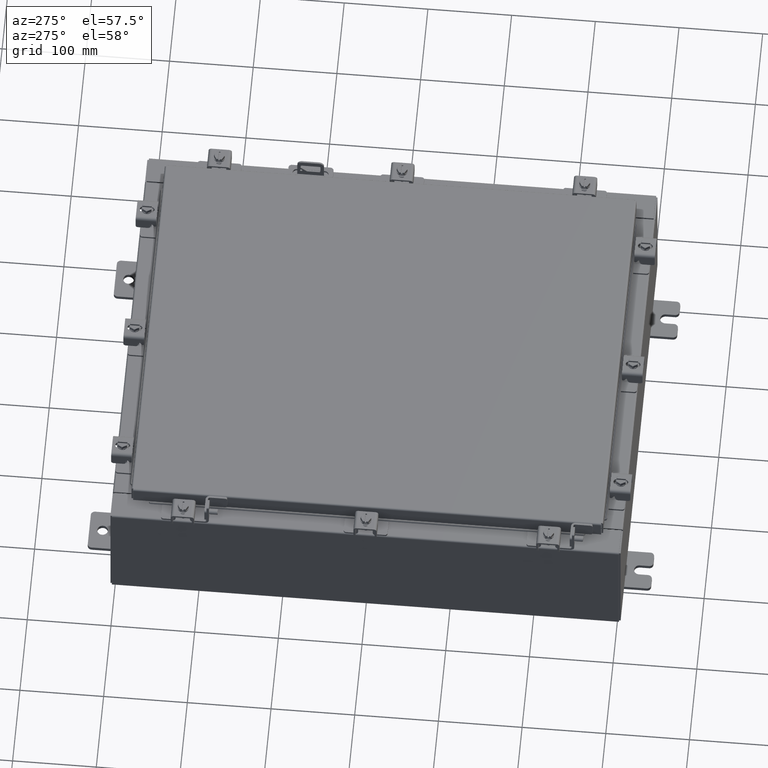
[diagram: clean part render]
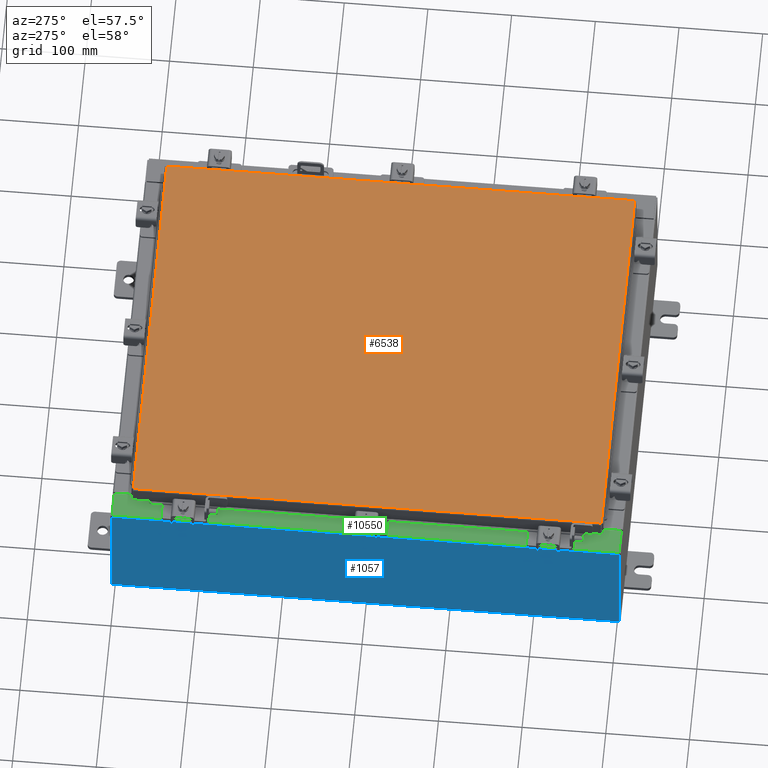
[diagram: same view with three faces highlighted in distinct colors, each labeled with its STEP entity id]
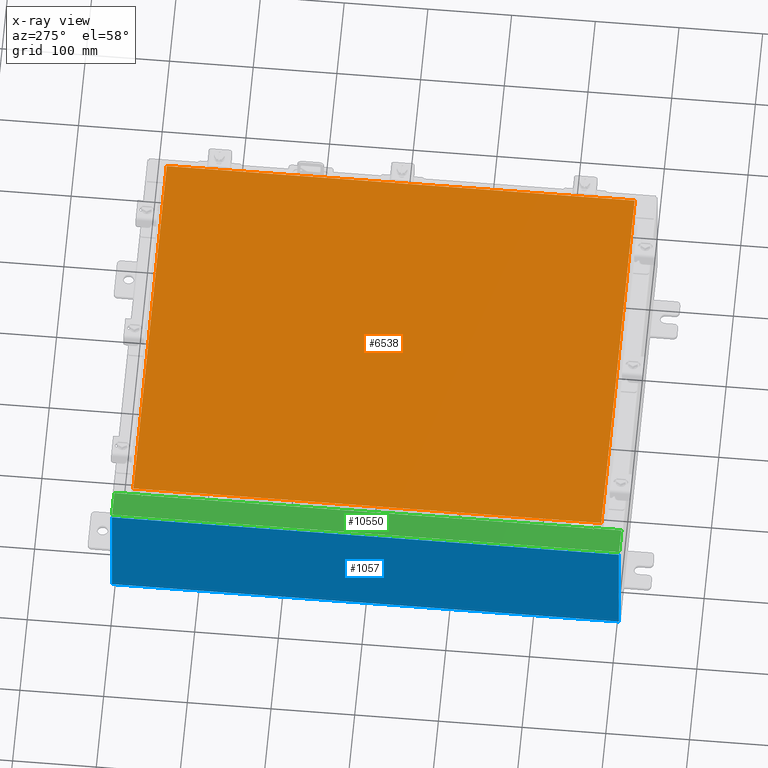
[diagram: x-ray of the same camera — body ghosted, the three highlighted faces saturated]
A machine part, auxiliary view with three faces highlighted in distinct colors.
The next image is the same camera in x-ray (body ghosted, the three faces saturated) — at least one of them is partly hidden behind the body in this view.
Their STEP definitions:

[orange] entity #6538 — the highlighted planar face has unit normal (0, 0, -1).
#2080 = LINE ( 'NONE', #19441, #20140 ) ;
#2302 = PLANE ( 'NONE',  #6782 ) ;
#3146 = CARTESIAN_POINT ( 'NONE',  ( -8.990299999999999500, -11.00630000000000100, -2.048885995248197400E-016 ) ) ;
#3487 = VECTOR ( 'NONE', #10028, 39.37007874015748100 ) ;
#4055 = DIRECTION ( 'NONE',  ( -1.000000000000000000, 0.0000000000000000000, -0.0000000000000000000 ) ) ;
#4361 = LINE ( 'NONE', #17717, #8456 ) ;
#4867 = ORIENTED_EDGE ( 'NONE', *, *, #13013, .T. ) ;
#5270 = EDGE_LOOP ( 'NONE', ( #8033, #7763, #9828, #4867 ) ) ;
#5568 = VERTEX_POINT ( 'NONE', #3146 ) ;
#6111 = VERTEX_POINT ( 'NONE', #10231 ) ;
#6538 = ADVANCED_FACE ( 'NONE', ( #22141 ), #2302, .F. ) ;
#6782 = AXIS2_PLACEMENT_3D ( 'NONE', #12795, #14528, #4055 ) ;
#7207 = DIRECTION ( 'NONE',  ( 0.0000000000000000000, 1.000000000000000000, 0.0000000000000000000 ) ) ;
#7763 = ORIENTED_EDGE ( 'NONE', *, *, #19618, .T. ) ;
#7893 = LINE ( 'NONE', #9302, #21288 ) ;
#8033 = ORIENTED_EDGE ( 'NONE', *, *, #13905, .T. ) ;
#8163 = LINE ( 'NONE', #22261, #3487 ) ;
#8456 = VECTOR ( 'NONE', #17786, 39.37007874015748100 ) ;
#8705 = CARTESIAN_POINT ( 'NONE',  ( 8.990299999999999500, -11.00630000000000000, -7.512581982576723400E-016 ) ) ;
#9302 = CARTESIAN_POINT ( 'NONE',  ( 8.990299999999999500, 11.00630000000000000, -2.048885995248197400E-016 ) ) ;
#9828 = ORIENTED_EDGE ( 'NONE', *, *, #13603, .T. ) ;
#9846 = CARTESIAN_POINT ( 'NONE',  ( -8.990299999999999500, 11.00630000000000100, -2.048885995248197400E-016 ) ) ;
#10028 = DIRECTION ( 'NONE',  ( 1.000000000000000000, -0.0000000000000000000, -0.0000000000000000000 ) ) ;
#10231 = CARTESIAN_POINT ( 'NONE',  ( 8.990299999999999500, 11.00630000000000000, -2.048885995248197400E-016 ) ) ;
#11036 = DIRECTION ( 'NONE',  ( -1.000000000000000000, -0.0000000000000000000, -0.0000000000000000000 ) ) ;
#12024 = VERTEX_POINT ( 'NONE', #8705 ) ;
#12795 = CARTESIAN_POINT ( 'NONE',  ( 0.0000000000000000000, 0.0000000000000000000, 0.0000000000000000000 ) ) ;
#13013 = EDGE_CURVE ( 'NONE', #14407, #5568, #4361, .T. ) ;
#13603 = EDGE_CURVE ( 'NONE', #6111, #14407, #7893, .T. ) ;
#13905 = EDGE_CURVE ( 'NONE', #5568, #12024, #8163, .T. ) ;
#14407 = VERTEX_POINT ( 'NONE', #9846 ) ;
#14528 = DIRECTION ( 'NONE',  ( 0.0000000000000000000, 0.0000000000000000000, -1.000000000000000000 ) ) ;
#17717 = CARTESIAN_POINT ( 'NONE',  ( -8.990299999999999500, 11.00630000000000100, -2.048885995248197400E-016 ) ) ;
#17786 = DIRECTION ( 'NONE',  ( 0.0000000000000000000, -1.000000000000000000, 0.0000000000000000000 ) ) ;
#19441 = CARTESIAN_POINT ( 'NONE',  ( 8.990299999999999500, -11.00630000000000000, -7.512581982576723400E-016 ) ) ;
#19618 = EDGE_CURVE ( 'NONE', #12024, #6111, #2080, .T. ) ;
#20140 = VECTOR ( 'NONE', #7207, 39.37007874015748100 ) ;
#21288 = VECTOR ( 'NONE', #11036, 39.37007874015748100 ) ;
#22141 = FACE_OUTER_BOUND ( 'NONE', #5270, .T. ) ;
#22261 = CARTESIAN_POINT ( 'NONE',  ( -8.990299999999999500, -11.00630000000000100, -2.048885995248197400E-016 ) ) ;

[blue] entity #1057 — the highlighted planar face has unit normal (1, 0, 0).
#828 = ORIENTED_EDGE ( 'NONE', *, *, #4897, .T. ) ;
#899 = ORIENTED_EDGE ( 'NONE', *, *, #11025, .F. ) ;
#1057 = ADVANCED_FACE ( 'NONE', ( #15303 ), #15735, .F. ) ;
#1670 = CARTESIAN_POINT ( 'NONE',  ( -10.00000000000000000, 11.92530000000000000, 0.01299999999999985900 ) ) ;
#4677 = VECTOR ( 'NONE', #13314, 39.37007874015748100 ) ;
#4897 = EDGE_CURVE ( 'NONE', #16593, #5907, #18660, .T. ) ;
#5180 = CARTESIAN_POINT ( 'NONE',  ( -10.00000000000000000, -11.92530000000000000, -3.345627304943080600E-014 ) ) ;
#5785 = DIRECTION ( 'NONE',  ( 3.319545939341922800E-015, 0.0000000000000000000, -1.000000000000000000 ) ) ;
#5846 = DIRECTION ( 'NONE',  ( -0.0000000000000000000, 1.000000000000000000, -0.0000000000000000000 ) ) ;
#5907 = VERTEX_POINT ( 'NONE', #16720 ) ;
#6628 = LINE ( 'NONE', #18110, #20577 ) ;
#8478 = LINE ( 'NONE', #12765, #17261 ) ;
#9916 = CARTESIAN_POINT ( 'NONE',  ( -10.00000000000002000, 11.92530000000000000, 5.837599999999999200 ) ) ;
#10833 = CARTESIAN_POINT ( 'NONE',  ( -10.00000000000000000, 0.0000000000000000000, -3.345627304943080600E-014 ) ) ;
#11025 = EDGE_CURVE ( 'NONE', #16593, #12318, #6628, .T. ) ;
#11087 = DIRECTION ( 'NONE',  ( 1.000000000000000000, 0.0000000000000000000, 3.319545939341922800E-015 ) ) ;
#11768 = EDGE_CURVE ( 'NONE', #5907, #20055, #19187, .T. ) ;
#12131 = DIRECTION ( 'NONE',  ( -3.319545939341922800E-015, 0.0000000000000000000, 1.000000000000000000 ) ) ;
#12318 = VERTEX_POINT ( 'NONE', #1670 ) ;
#12559 = EDGE_CURVE ( 'NONE', #20055, #12318, #8478, .T. ) ;
#12765 = CARTESIAN_POINT ( 'NONE',  ( -10.00000000000000000, 11.92530000000000000, -3.345627304943080600E-014 ) ) ;
#13216 = ORIENTED_EDGE ( 'NONE', *, *, #12559, .T. ) ;
#13314 = DIRECTION ( 'NONE',  ( 0.0000000000000000000, 1.000000000000000000, 0.0000000000000000000 ) ) ;
#15056 = ORIENTED_EDGE ( 'NONE', *, *, #11768, .T. ) ;
#15303 = FACE_OUTER_BOUND ( 'NONE', #20808, .T. ) ;
#15735 = PLANE ( 'NONE',  #19322 ) ;
#16405 = DIRECTION ( 'NONE',  ( 3.319545939341922800E-015, 0.0000000000000000000, -1.000000000000000000 ) ) ;
#16593 = VERTEX_POINT ( 'NONE', #21692 ) ;
#16720 = CARTESIAN_POINT ( 'NONE',  ( -10.00000000000002300, -11.92529999999999600, 5.837599999999999200 ) ) ;
#17261 = VECTOR ( 'NONE', #5785, 39.37007874015748100 ) ;
#18110 = CARTESIAN_POINT ( 'NONE',  ( -10.00000000000000000, 11.92530000000000000, 0.01299999999999986400 ) ) ;
#18137 = VECTOR ( 'NONE', #12131, 39.37007874015748100 ) ;
#18660 = LINE ( 'NONE', #5180, #18137 ) ;
#19187 = LINE ( 'NONE', #22004, #4677 ) ;
#19322 = AXIS2_PLACEMENT_3D ( 'NONE', #10833, #11087, #16405 ) ;
#20055 = VERTEX_POINT ( 'NONE', #9916 ) ;
#20577 = VECTOR ( 'NONE', #5846, 39.37007874015748100 ) ;
#20808 = EDGE_LOOP ( 'NONE', ( #15056, #13216, #899, #828 ) ) ;
#21692 = CARTESIAN_POINT ( 'NONE',  ( -10.00000000000000000, -11.92529999999999800, 0.01299999999999986400 ) ) ;
#22004 = CARTESIAN_POINT ( 'NONE',  ( -10.00000000000002300, -11.92530000000000000, 5.837599999999999200 ) ) ;

[green] entity #10550 — the highlighted planar face has unit normal (0, 0, -1).
#245 = DIRECTION ( 'NONE',  ( -1.000000000000000000, 0.0000000000000000000, -7.132762385546378400E-015 ) ) ;
#350 = DIRECTION ( 'NONE',  ( -0.0000000000000000000, -1.000000000000000000, -0.0000000000000000000 ) ) ;
#865 = LINE ( 'NONE', #16610, #18349 ) ;
#1319 = CARTESIAN_POINT ( 'NONE',  ( -8.712700000000019400, 10.59375000000000000, 5.925300000000008900 ) ) ;
#1625 = VECTOR ( 'NONE', #19829, 39.37007874015748100 ) ;
#1769 = AXIS2_PLACEMENT_3D ( 'NONE', #17644, #7150, #19390 ) ;
#2590 = VERTEX_POINT ( 'NONE', #14445 ) ;
#2974 = AXIS2_PLACEMENT_3D ( 'NONE', #8818, #10656, #245 ) ;
#3225 = EDGE_CURVE ( 'NONE', #16916, #17316, #22572, .T. ) ;
#3578 = ORIENTED_EDGE ( 'NONE', *, *, #22580, .F. ) ;
#4268 = VERTEX_POINT ( 'NONE', #16514 ) ;
#4303 = CIRCLE ( 'NONE', #1769, 0.01867499999999949400 ) ;
#4556 = CARTESIAN_POINT ( 'NONE',  ( -8.750050000000019400, -10.63109999999999300, 5.925300000000008000 ) ) ;
#4670 = CARTESIAN_POINT ( 'NONE',  ( -4.252457061909003800E-014, 11.92530000000000000, 5.925300000000070200 ) ) ;
#5099 = CARTESIAN_POINT ( 'NONE',  ( -8.712700000000019400, -10.59374999999999300, 5.925300000000008900 ) ) ;
#5137 = CARTESIAN_POINT ( 'NONE',  ( -9.912300000000021400, -11.92529999999999600, 5.925299999999999100 ) ) ;
#5226 = CARTESIAN_POINT ( 'NONE',  ( -8.699700000000019500, -10.63109999999999300, 5.925300000000008000 ) ) ;
#5276 = CIRCLE ( 'NONE', #7625, 0.01867499999999949400 ) ;
#5401 = ORIENTED_EDGE ( 'NONE', *, *, #16633, .F. ) ;
#5453 = VECTOR ( 'NONE', #6263, 39.37007874015748100 ) ;
#5972 = ORIENTED_EDGE ( 'NONE', *, *, #22446, .F. ) ;
#6004 = LINE ( 'NONE', #13157, #5453 ) ;
#6260 = LINE ( 'NONE', #21580, #1625 ) ;
#6263 = DIRECTION ( 'NONE',  ( -1.000000000000000000, -4.340572780400004900E-014, 2.170286390200002500E-014 ) ) ;
#6378 = ORIENTED_EDGE ( 'NONE', *, *, #13404, .T. ) ;
#6784 = VERTEX_POINT ( 'NONE', #14984 ) ;
#6792 = EDGE_CURVE ( 'NONE', #6784, #2590, #6004, .T. ) ;
#7050 = LINE ( 'NONE', #15335, #11698 ) ;
#7150 = DIRECTION ( 'NONE',  ( -7.132762385546378400E-015, -0.0000000000000000000, 1.000000000000000000 ) ) ;
#7433 = VERTEX_POINT ( 'NONE', #4556 ) ;
#7527 = VECTOR ( 'NONE', #350, 39.37007874015748100 ) ;
#7588 = ORIENTED_EDGE ( 'NONE', *, *, #13134, .F. ) ;
#7625 = AXIS2_PLACEMENT_3D ( 'NONE', #9247, #21472, #10984 ) ;
#7986 = CARTESIAN_POINT ( 'NONE',  ( -9.912300000000021400, 11.92530000000000000, 5.925299999999999100 ) ) ;
#8007 = DIRECTION ( 'NONE',  ( -1.000000000000000000, 0.0000000000000000000, 0.0000000000000000000 ) ) ;
#8267 = VERTEX_POINT ( 'NONE', #1319 ) ;
#8372 = ORIENTED_EDGE ( 'NONE', *, *, #12015, .T. ) ;
#8818 = CARTESIAN_POINT ( 'NONE',  ( -4.252457061909003800E-014, 0.0000000000000000000, 5.925300000000070200 ) ) ;
#8902 = PLANE ( 'NONE',  #2974 ) ;
#8941 = DIRECTION ( 'NONE',  ( 1.000000000000000000, 0.0000000000000000000, 0.0000000000000000000 ) ) ;
#9247 = CARTESIAN_POINT ( 'NONE',  ( -8.750050000000019400, -10.61242499999999300, 5.925300000000008900 ) ) ;
#10122 = LINE ( 'NONE', #19183, #19450 ) ;
#10550 = ADVANCED_FACE ( 'NONE', ( #19504 ), #8902, .F. ) ;
#10656 = DIRECTION ( 'NONE',  ( 7.132762385546378400E-015, 0.0000000000000000000, -1.000000000000000000 ) ) ;
#10757 = CARTESIAN_POINT ( 'NONE',  ( -8.712700000000019400, 10.59375000000000200, 5.925300000000008900 ) ) ;
#10984 = DIRECTION ( 'NONE',  ( 1.000000000000000000, 0.0000000000000000000, 0.0000000000000000000 ) ) ;
#11123 = CARTESIAN_POINT ( 'NONE',  ( -8.750050000000019400, 10.59375000000000000, 5.925300000000008000 ) ) ;
#11173 = VECTOR ( 'NONE', #18670, 39.37007874015748100 ) ;
#11375 = VERTEX_POINT ( 'NONE', #5137 ) ;
#11570 = LINE ( 'NONE', #19415, #20871 ) ;
#11698 = VECTOR ( 'NONE', #22339, 39.37007874015748100 ) ;
#12015 = EDGE_CURVE ( 'NONE', #6784, #4268, #10122, .T. ) ;
#12673 = DIRECTION ( 'NONE',  ( 1.000000000000000000, 1.783190596386595000E-015, 7.132762385546378400E-015 ) ) ;
#12901 = VERTEX_POINT ( 'NONE', #5226 ) ;
#13134 = EDGE_CURVE ( 'NONE', #11375, #19366, #6260, .T. ) ;
#13157 = CARTESIAN_POINT ( 'NONE',  ( -8.699700000000019500, 10.63110000000000200, 5.925300000000008000 ) ) ;
#13404 = EDGE_CURVE ( 'NONE', #4268, #19366, #20479, .T. ) ;
#13525 = EDGE_CURVE ( 'NONE', #11375, #20241, #18847, .T. ) ;
#13950 = EDGE_CURVE ( 'NONE', #20241, #12901, #7050, .T. ) ;
#14144 = ORIENTED_EDGE ( 'NONE', *, *, #6792, .F. ) ;
#14302 = ORIENTED_EDGE ( 'NONE', *, *, #3225, .F. ) ;
#14376 = ORIENTED_EDGE ( 'NONE', *, *, #13525, .T. ) ;
#14445 = CARTESIAN_POINT ( 'NONE',  ( -8.750050000000019400, 10.63109999999999800, 5.925300000000008000 ) ) ;
#14733 = CARTESIAN_POINT ( 'NONE',  ( -8.750050000000019400, -10.59374999999999300, 5.925300000000008000 ) ) ;
#14984 = CARTESIAN_POINT ( 'NONE',  ( -8.699700000000019500, 10.63110000000000200, 5.925300000000008000 ) ) ;
#15245 = ORIENTED_EDGE ( 'NONE', *, *, #20392, .F. ) ;
#15335 = CARTESIAN_POINT ( 'NONE',  ( -8.699700000000019500, -2.714776676034132700E-030, 5.925300000000008000 ) ) ;
#15587 = ORIENTED_EDGE ( 'NONE', *, *, #13950, .T. ) ;
#16514 = CARTESIAN_POINT ( 'NONE',  ( -8.699700000000019500, 11.92530000000000000, 5.925300000000008000 ) ) ;
#16610 = CARTESIAN_POINT ( 'NONE',  ( -8.750050000000019400, -10.63109999999999300, 5.925300000000008900 ) ) ;
#16633 = EDGE_CURVE ( 'NONE', #7433, #12901, #865, .T. ) ;
#16916 = VERTEX_POINT ( 'NONE', #5099 ) ;
#17274 = CARTESIAN_POINT ( 'NONE',  ( -8.712700000000019400, -10.59374999999999300, 5.925300000000008900 ) ) ;
#17316 = VERTEX_POINT ( 'NONE', #14733 ) ;
#17365 = DIRECTION ( 'NONE',  ( -3.120540565805878000E-031, 1.000000000000000000, -2.225807437035178000E-045 ) ) ;
#17377 = CARTESIAN_POINT ( 'NONE',  ( -8.699700000000019500, -11.92529999999999500, 5.925300000000008000 ) ) ;
#17644 = CARTESIAN_POINT ( 'NONE',  ( -8.750050000000019400, 10.61242500000000000, 5.925300000000008900 ) ) ;
#17876 = CARTESIAN_POINT ( 'NONE',  ( -2.125948780000101000E-014, -11.92529999999998000, 5.925300000000070200 ) ) ;
#18307 = VECTOR ( 'NONE', #12673, 39.37007874015748100 ) ;
#18349 = VECTOR ( 'NONE', #18358, 39.37007874015748100 ) ;
#18358 = DIRECTION ( 'NONE',  ( 1.000000000000000000, 0.0000000000000000000, -2.170286390200002500E-014 ) ) ;
#18670 = DIRECTION ( 'NONE',  ( -1.000000000000000000, -4.084933421431486500E-032, -7.132762385546378400E-015 ) ) ;
#18847 = LINE ( 'NONE', #17876, #18307 ) ;
#18954 = EDGE_CURVE ( 'NONE', #2590, #21207, #4303, .T. ) ;
#19183 = CARTESIAN_POINT ( 'NONE',  ( -8.699700000000019500, -2.714776676034132700E-030, 5.925300000000008000 ) ) ;
#19366 = VERTEX_POINT ( 'NONE', #7986 ) ;
#19390 = DIRECTION ( 'NONE',  ( 1.000000000000000000, 0.0000000000000000000, 0.0000000000000000000 ) ) ;
#19415 = CARTESIAN_POINT ( 'NONE',  ( -8.750050000000019400, 10.59375000000000000, 5.925300000000008900 ) ) ;
#19450 = VECTOR ( 'NONE', #17365, 39.37007874015748100 ) ;
#19504 = FACE_OUTER_BOUND ( 'NONE', #20103, .T. ) ;
#19829 = DIRECTION ( 'NONE',  ( 9.163200904511462000E-017, 1.000000000000000000, 6.535893474290389800E-031 ) ) ;
#20103 = EDGE_LOOP ( 'NONE', ( #14144, #8372, #6378, #7588, #14376, #15587, #5401, #3578, #14302, #15245, #5972, #20263 ) ) ;
#20241 = VERTEX_POINT ( 'NONE', #17377 ) ;
#20263 = ORIENTED_EDGE ( 'NONE', *, *, #18954, .F. ) ;
#20392 = EDGE_CURVE ( 'NONE', #8267, #16916, #21462, .T. ) ;
#20479 = LINE ( 'NONE', #4670, #11173 ) ;
#20871 = VECTOR ( 'NONE', #8941, 39.37007874015748100 ) ;
#21207 = VERTEX_POINT ( 'NONE', #11123 ) ;
#21462 = LINE ( 'NONE', #10757, #7527 ) ;
#21472 = DIRECTION ( 'NONE',  ( -7.132762385546378400E-015, -0.0000000000000000000, 1.000000000000000000 ) ) ;
#21580 = CARTESIAN_POINT ( 'NONE',  ( -9.912300000000019700, 11.92530000000000000, 5.925299999999999100 ) ) ;
#22036 = VECTOR ( 'NONE', #8007, 39.37007874015748100 ) ;
#22339 = DIRECTION ( 'NONE',  ( -3.120540565805878000E-031, 1.000000000000000000, -2.225807437035178000E-045 ) ) ;
#22446 = EDGE_CURVE ( 'NONE', #21207, #8267, #11570, .T. ) ;
#22572 = LINE ( 'NONE', #17274, #22036 ) ;
#22580 = EDGE_CURVE ( 'NONE', #17316, #7433, #5276, .T. ) ;